MODEL slx_02fac4a45773
KIND model
CONFIG AbsTol = auto
CONFIG EnableMultiTasking = off
CONFIG FixedStep = auto
CONFIG MaxStep = auto
CONFIG MinStep = auto
CONFIG RelTol = 1e-3
CONFIG SampleTimeConstraint = Unconstrained
CONFIG SolverName = FixedStepAuto
CONFIG StartTime = 0.0
CONFIG StopTime = Inf
BLOCK [SubSystem] Action Feedback
  PortSchema = {"entries":[{"content":{"sides":[{"content":{"connectorIds":["Out1"]},"type":"ConnectorPlacement.EquallySpacedRectSide","uuid":"16802256-551c-4223-bfc5-a76a4b41f33f"},{"content":{"connectorIds":["In1","In2","In3"],"side":"RIGHT"},"type":"ConnectorPlacement.EquallySpacedRectSide","uuid":"5606428e-27b0-4fd9-928f-2a9a8baead9b"},{"content":{"connectorIds":[],"side":"TOP"},"type":"ConnectorPlacement.Eq...<+252ch>
  Ports = [3, 1]
  RequestExecContextInheritance = off
BLOCK [Outport] Action Feedback/dist
BLOCK [SubSystem] Action Feedback/distance calculator
  Ports = [2, 1, 1]
  RequestExecContextInheritance = off
BLOCK [BusSelector] Action Feedback/distance calculator/Bus Selector1
  OutputSignals = x,y,theta
  Ports = [1, 3]
BLOCK [DotProduct] Action Feedback/distance calculator/Dot Product1
  OutDataTypeStr = Inherit: Inherit via internal rule
BLOCK [EnablePort] Action Feedback/distance calculator/Enable
  Ports = []
BLOCK [Mux] Action Feedback/distance calculator/Mux2
  DisplayOption = bar
  Inputs = 2
  Ports = [2, 1]
BLOCK [RateTransition] Action Feedback/distance calculator/Rate Transition
  OutPortSampleTime = 0.1
BLOCK [Sqrt] Action Feedback/distance calculator/Sqrt
BLOCK [Sum] Action Feedback/distance calculator/Sum
  Inputs = |+-
  Ports = [2, 1]
BLOCK [Terminator] Action Feedback/distance calculator/Terminator
BLOCK [Outport] Action Feedback/distance calculator/dist
BLOCK [Inport] Action Feedback/distance calculator/goal
BLOCK [Inport] Action Feedback/distance calculator/pose_msg
  Port = 2
BLOCK [Inport] Action Feedback/goal
BLOCK [Inport] Action Feedback/mode
  Port = 2
BLOCK [Inport] Action Feedback/pose_msg
  Port = 3
BLOCK [SubSystem] Controller
  PortSchema = {"entries":[{"content":{"sides":[{"content":{"connectorIds":["Out2","In1","In2"]},"type":"ConnectorPlacement.EquallySpacedRectSide","uuid":"038c2229-5bef-4150-bdd4-e0d53c992ca9"},{"content":{"connectorIds":["Out1","In3"],"side":"RIGHT"},"type":"ConnectorPlacement.EquallySpacedRectSide","uuid":"f3336771-d94a-4ec8-8106-6e13fcccc0ae"},{"content":{"connectorIds":[],"side":"TOP"},"type":"ConnectorPlace...<+403ch>
  Ports = [3, 2]
  RequestExecContextInheritance = off
BLOCK [Reference] Controller/Blank Message  REF=ros2lib/Blank Message  (lib defined in slx_3c1549211f48)
  Ports = [0, 1]
  SourceBlock = ros2lib/Blank Message
  SourceProductBaseCode = RR
  SourceType = ROS2 Blank Message
BLOCK [BusAssignment] Controller/Bus Assignment
  AssignedSignals = linear.x,angular.z
  Ports = [3, 1]
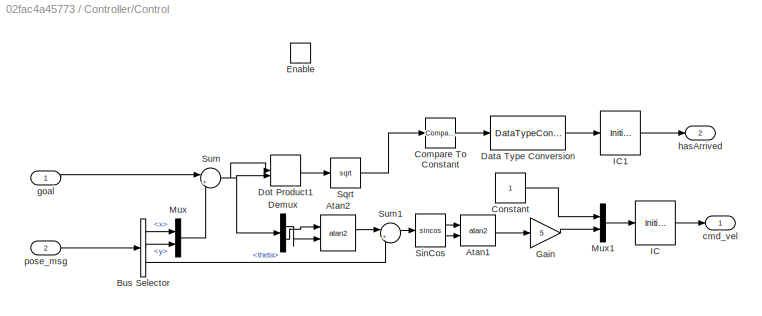
BLOCK [SubSystem] Controller/Control
  Ports = [2, 2, 1]
  RequestExecContextInheritance = off
BLOCK [Trigonometry] Controller/Control/Atan1
  Operator = atan2
  Ports = [2, 1]
BLOCK [Trigonometry] Controller/Control/Atan2
  Operator = atan2
  Ports = [2, 1]
BLOCK [BusSelector] Controller/Control/Bus Selector
  OutputSignals = x,y,theta
  Ports = [1, 3]
BLOCK [Reference] Controller/Control/Compare To Constant  REF=simulink/Logic and Bit
Operations/Compare
To Constant
  Ports = [1, 1]
  SourceBlock = simulink/Logic and Bit\nOperations/Compare\nTo Constant
  SourceProductBaseCode = SL
  SourceType = Compare To Constant
BLOCK [Constant] Controller/Control/Constant
BLOCK [DataTypeConversion] Controller/Control/Data Type Conversion
  RndMeth = Floor
  SaturateOnIntegerOverflow = off
BLOCK [Demux] Controller/Control/Demux
  Outputs = 2
  Ports = [1, 2]
BLOCK [DotProduct] Controller/Control/Dot Product1
  OutDataTypeStr = Inherit: Inherit via internal rule
BLOCK [EnablePort] Controller/Control/Enable
  Ports = []
BLOCK [Gain] Controller/Control/Gain
  Gain = 5
BLOCK [InitialCondition] Controller/Control/IC
  Value = [0;0]
BLOCK [InitialCondition] Controller/Control/IC1
BLOCK [Mux] Controller/Control/Mux
  DisplayOption = bar
  Inputs = 2
  Ports = [2, 1]
BLOCK [Mux] Controller/Control/Mux1
  DisplayOption = bar
  Inputs = 2
  Ports = [2, 1]
BLOCK [Trigonometry] Controller/Control/SinCos
  Operator = sincos
  Ports = [1, 2]
BLOCK [Sqrt] Controller/Control/Sqrt
BLOCK [Sum] Controller/Control/Sum
  Inputs = |+-
  Ports = [2, 1]
BLOCK [Sum] Controller/Control/Sum1
  Inputs = |+-
  Ports = [2, 1]
BLOCK [Outport] Controller/Control/cmd_vel
  SampleTime = 0.01
BLOCK [Inport] Controller/Control/goal
BLOCK [Outport] Controller/Control/hasArrived
  Port = 2
BLOCK [Inport] Controller/Control/pose_msg
  Port = 2
BLOCK [Demux] Controller/Demux1
  Outputs = 2
  Ports = [1, 2]
BLOCK [Merge] Controller/Merge
  InitialOutput = [0;0]
  Ports = [2, 1]
BLOCK [SubSystem] Controller/Stop Robot
  Ports = [0, 1, 0, 1]
  RequestExecContextInheritance = off
BLOCK [Constant] Controller/Stop Robot/Constant1
  Value = [0;0]
BLOCK [TriggerPort] Controller/Stop Robot/Trigger
  PortDimensions = 1
  Ports = []
  StatesWhenEnabling = held
  TriggerType = falling
  VariantControl = (inherit)
BLOCK [Outport] Controller/Stop Robot/cmd_vel
BLOCK [Outport] Controller/cmd_vel_msg
BLOCK [Inport] Controller/goal
BLOCK [Outport] Controller/hasArrived
  Port = 2
BLOCK [Inport] Controller/mode
  Port = 2
BLOCK [Inport] Controller/pose_msg
  Port = 3
BLOCK [DisplayBlock] Feedback
  LabelPosition = Hide
  Transparency = 1
BLOCK [SubSystem] From ROS2 Network
  PortSchema = {"entries":[{"content":{"sides":[{"content":{"connectorIds":["In1","Out1"]},"type":"ConnectorPlacement.EquallySpacedRectSide","uuid":"f269cb0f-6751-420c-b024-d2e3796ade5b"},{"content":{"connectorIds":[],"side":"RIGHT"},"type":"ConnectorPlacement.EquallySpacedRectSide","uuid":"2b43efcf-3102-43c3-9588-0e0fabe7b77d"},{"content":{"connectorIds":[],"side":"TOP"},"type":"ConnectorPlacement.EquallySpaced...<+241ch>
  Ports = [1, 1]
  RequestExecContextInheritance = off
BLOCK [Reference] From ROS2 Network/Publish  REF=ros2lib/Publish  (lib defined in slx_3c1549211f48)
  Ports = [1]
  SourceBlock = ros2lib/Publish
  SourceProductBaseCode = RR
  SourceType = ROS2 Publish
BLOCK [Scope] From ROS2 Network/Scope
  Floating = off
  NumInputPorts = 1
  Ports = [1]
  ScopeSpecificationString = Simulink.scopes.TimeScopeBlockCfg('CurrentConfiguration', extmgr.ConfigurationSet(extmgr.Configuration('Core','General UI',true),extmgr.Configuration('Core','Source UI',true),extmgr.Configuration('Sources','WiredSimulink',true,'DataLoggingVariableName','ScopeData2'),extmgr.Configuration('Visuals','Time Domain',true,'SerializedDisplays',{struct('MinYLimReal','-0.125','MaxYLimReal','1.125','YLabelRe...<+1387ch>
BLOCK [Reference] From ROS2 Network/Subscribe  REF=ros2lib/Subscribe  (lib defined in slx_3c1549211f48)
  Ports = [0, 2]
  SourceBlock = ros2lib/Subscribe
  SourceProductBaseCode = RR
  SourceType = ROS2 Subscribe
BLOCK [SubSystem] From ROS2 Network/Subsystem
  Ports = [1, 1, 0, 1]
  RequestExecContextInheritance = off
BLOCK [Inport] From ROS2 Network/Subsystem/In1
BLOCK [Outport] From ROS2 Network/Subsystem/Out1
BLOCK [TriggerPort] From ROS2 Network/Subsystem/Trigger
  PortDimensions = 1
  Ports = []
  StatesWhenEnabling = held
  VariantControl = (inherit)
BLOCK [Inport] From ROS2 Network/cmd_vel_msg
  SampleTime = 0.01
BLOCK [Outport] From ROS2 Network/pose_msg
  NameLocation = top
  SampleTime = 0.01
BLOCK [SubSystem] Input Interface
  Ports = [0, 1]
  RequestExecContextInheritance = off
BLOCK [BusCreator] Input Interface/Bus Creator
  DisplayOption = bar
  InheritFromInputs = on
  Inputs = 2
  Ports = [2, 1]
BLOCK [Constant] Input Interface/Constant
  Value = 2
BLOCK [Constant] Input Interface/Constant1
  Value = 3
BLOCK [Constant] Input Interface/Constant2
  Value = 0
BLOCK [Mux] Input Interface/Mux
  DisplayOption = bar
  Inputs = 2
  Ports = [2, 1]
BLOCK [Outport] Input Interface/request
BLOCK [LampBlock] Lamp
  LabelPosition = Hide
BLOCK [Memory] Memory
  InitialCondition = 1
  NameLocation = top
BLOCK [SubSystem] Output Interface
  Ports = [2]
  RequestExecContextInheritance = off
BLOCK [Display] Output Interface/Feedback
  Decimation = 1
  Ports = [1]
BLOCK [Display] Output Interface/Result
  Decimation = 1
  Ports = [1]
BLOCK [Inport] Output Interface/feedback
  Port = 2
BLOCK [Inport] Output Interface/result
BLOCK [PushButtonBlock] Push Button
  IconAlignment = Center
  IconColor = On
  OffValue = 0.000000
  Opacity = 0
BLOCK [EditField] Request : x
  Alignment = Center
  LabelPosition = Hide
  ShowInitialText = on
BLOCK [EditField] Request : y
  Alignment = Center
  LabelPosition = Hide
  ShowInitialText = on
BLOCK [DisplayBlock] Result
  LabelPosition = Hide
  Transparency = 1
BLOCK [SubSystem] Scheduler
  PortSchema = {"entries":[{"content":{"sides":[{"content":{"connectorIds":["In1","Out3"]},"type":"ConnectorPlacement.EquallySpacedRectSide","uuid":"1630b4b1-4c51-4b39-8ddc-aa89298d57f7"},{"content":{"connectorIds":["In2","Out1","Out2"],"side":"RIGHT"},"type":"ConnectorPlacement.EquallySpacedRectSide","uuid":"26eab6e1-3412-432a-b46d-5233f76b34aa"},{"content":{"connectorIds":[],"side":"TOP"},"type":"ConnectorPlac...<+260ch>
  Ports = [2, 3]
  RequestExecContextInheritance = off
BLOCK [BusSelector] Scheduler/Bus Selector
  OutputSignals = trigger,goal
  Ports = [1, 2]
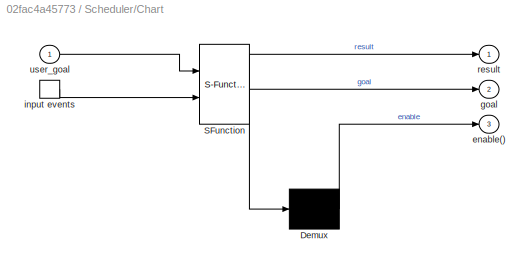
BLOCK [SubSystem] Scheduler/Chart
  ErrorFcn = Stateflow.Translate.translate
  PermitHierarchicalResolution = ExplicitOnly
  Ports = [1, 3, 0, 1]
  RequestExecContextInheritance = off
  SFBlockType = Chart
  TreatAsAtomicUnit = on
BLOCK [Demux] Scheduler/Chart/ Demux 
  Outputs = 1
  Ports = [1, 1]
BLOCK [S-Function] Scheduler/Chart/ SFunction 
  EnableBusSupport = on
  FunctionName = sf_sfun
  PortCounts = [2 3]
  Ports = [2, 3]
  SFcnIsStateOwnerBlock = off
  SFunctionDeploymentMode = off
  Tag = Stateflow S-Function 3
BLOCK [Outport] Scheduler/Chart/enable()
  Port = 3
BLOCK [Outport] Scheduler/Chart/goal
  Port = 2
BLOCK [TriggerPort] Scheduler/Chart/input events
  Ports = [0, 1]
  ShowOutputPort = on
  StatesWhenEnabling = held
  TriggerType = function-call
  VariantControl = (inherit)
BLOCK [Outport] Scheduler/Chart/result
BLOCK [Inport] Scheduler/Chart/user_goal
BLOCK [SubSystem] Scheduler/Chart1
  ErrorFcn = Stateflow.Translate.translate
  PermitHierarchicalResolution = ExplicitOnly
  Ports = [0, 1, 0, 1]
  RequestExecContextInheritance = off
  SFBlockType = Chart
  TreatAsAtomicUnit = on
BLOCK [Demux] Scheduler/Chart1/ Demux 
  Outputs = 1
  Ports = [1, 1]
BLOCK [S-Function] Scheduler/Chart1/ SFunction 
  EnableBusSupport = on
  FunctionName = sf_sfun
  PortCounts = [1 2]
  Ports = [1, 2]
  SFcnIsStateOwnerBlock = off
  SFunctionDeploymentMode = off
  Tag = Stateflow S-Function 2
BLOCK [Terminator] Scheduler/Chart1/ Terminator 
BLOCK [TriggerPort] Scheduler/Chart1/input events
  Ports = [0, 1]
  ShowOutputPort = on
  StatesWhenEnabling = held
  TriggerType = function-call
  VariantControl = (inherit)
BLOCK [Outport] Scheduler/Chart1/mode
BLOCK [HitCross] Scheduler/Hit Crossing
  HitCrossingDirection = rising
  HitCrossingOutputType = Function-Call
  Ports = [1, 1]
BLOCK [HitCross] Scheduler/Hit Crossing1
  HitCrossingDirection = rising
  HitCrossingOutputType = Function-Call
  Ports = [1, 1]
BLOCK [HitCross] Scheduler/Hit Crossing2
  HitCrossingDirection = rising
  HitCrossingOutputType = Function-Call
  Ports = [1, 1]
BLOCK [Mux] Scheduler/Mux1
  DisplayOption = bar
  Inputs = 2
  Ports = [2, 1]
BLOCK [Mux] Scheduler/Mux2
  DisplayOption = bar
  Inputs = 2
  Ports = [2, 1]
BLOCK [Outport] Scheduler/goal
BLOCK [Inport] Scheduler/hasArrived
  NameLocation = top
  Port = 2
BLOCK [Outport] Scheduler/mode
  Port = 2
BLOCK [Inport] Scheduler/request
BLOCK [Outport] Scheduler/result
  Port = 3
ANNOTATION (root): SEND ACTION REQUEST
ANNOTATION (root): Version : 0.0.1 Description: This model allows the Turtlesim to move to desired goal autnomously. Maintainer: Pi Thanacha Choopojcharoen Email Address: <email> License : GPLv2
LINE Action Feedback/distance calculator/Bus Selector1:1 -> Action Feedback/distance calculator/Mux2:1
LINE Action Feedback/distance calculator/Bus Selector1:2 -> Action Feedback/distance calculator/Mux2:2
LINE Action Feedback/distance calculator/Bus Selector1:3 -> Action Feedback/distance calculator/Terminator:1
LINE Action Feedback/distance calculator/Dot Product1:1 -> Action Feedback/distance calculator/Sqrt:1
LINE Action Feedback/distance calculator/Mux2:1 -> Action Feedback/distance calculator/Sum:2
LINE Action Feedback/distance calculator/Rate Transition:1 -> Action Feedback/distance calculator/dist:1
LINE Action Feedback/distance calculator/Sqrt:1 -> Action Feedback/distance calculator/Rate Transition:1
NET Action Feedback/distance calculator/Sum:1 -> Action Feedback/distance calculator/Dot Product1:1, Action Feedback/distance calculator/Dot Product1:2
LINE Action Feedback/distance calculator/goal:1 -> Action Feedback/distance calculator/Sum:1
LINE Action Feedback/distance calculator/pose_msg:1 -> Action Feedback/distance calculator/Bus Selector1:1
LINE Action Feedback/distance calculator:1 -> Action Feedback/dist:1
LINE Action Feedback/goal:1 -> Action Feedback/distance calculator:1
LINE Action Feedback/mode:1 -> Action Feedback/distance calculator:enable
LINE Action Feedback/pose_msg:1 -> Action Feedback/distance calculator:2
LINE Action Feedback:1 -> Output Interface:2
LINE Controller/Blank Message:1 -> Controller/Bus Assignment:1
LINE Controller/Bus Assignment:1 -> Controller/cmd_vel_msg:1
LINE Controller/Control/Atan1:1 -> Controller/Control/Gain:1
LINE Controller/Control/Atan2:1 -> Controller/Control/Sum1:1
LINE Controller/Control/Bus Selector:1 -> Controller/Control/Mux:1
LINE Controller/Control/Bus Selector:2 -> Controller/Control/Mux:2
LINE Controller/Control/Bus Selector:3 -> Controller/Control/Sum1:2
LINE Controller/Control/Compare To Constant:1 -> Controller/Control/Data Type Conversion:1
LINE Controller/Control/Constant:1 -> Controller/Control/Mux1:1
LINE Controller/Control/Data Type Conversion:1 -> Controller/Control/IC1:1
LINE Controller/Control/Demux:1 -> Controller/Control/Atan2:2
LINE Controller/Control/Demux:2 -> Controller/Control/Atan2:1
LINE Controller/Control/Dot Product1:1 -> Controller/Control/Sqrt:1
LINE Controller/Control/Gain:1 -> Controller/Control/Mux1:2
LINE Controller/Control/IC1:1 -> Controller/Control/hasArrived:1
LINE Controller/Control/IC:1 -> Controller/Control/cmd_vel:1
LINE Controller/Control/Mux1:1 -> Controller/Control/IC:1
LINE Controller/Control/Mux:1 -> Controller/Control/Sum:2
LINE Controller/Control/SinCos:1 -> Controller/Control/Atan1:1
LINE Controller/Control/SinCos:2 -> Controller/Control/Atan1:2
LINE Controller/Control/Sqrt:1 -> Controller/Control/Compare To Constant:1
LINE Controller/Control/Sum1:1 -> Controller/Control/SinCos:1
NET Controller/Control/Sum:1 -> Controller/Control/Demux:1, Controller/Control/Dot Product1:1, Controller/Control/Dot Product1:2
LINE Controller/Control/goal:1 -> Controller/Control/Sum:1
LINE Controller/Control/pose_msg:1 -> Controller/Control/Bus Selector:1
LINE Controller/Control:1 -> Controller/Merge:2
LINE Controller/Control:2 -> Controller/hasArrived:1
LINE Controller/Demux1:1 -> Controller/Bus Assignment:2
LINE Controller/Demux1:2 -> Controller/Bus Assignment:3
LINE Controller/Merge:1 -> Controller/Demux1:1
LINE Controller/Stop Robot/Constant1:1 -> Controller/Stop Robot/cmd_vel:1
LINE Controller/Stop Robot:1 -> Controller/Merge:1
LINE Controller/goal:1 -> Controller/Control:1
NET Controller/mode:1 -> Controller/Control:enable, Controller/Stop Robot:trigger
LINE Controller/pose_msg:1 -> Controller/Control:2
LINE Controller:1 -> From ROS2 Network:1
LINE Controller:2 -> Memory:1
NET From ROS2 Network/Subscribe:1 -> From ROS2 Network/Scope:1, From ROS2 Network/Subsystem:trigger
LINE From ROS2 Network/Subscribe:2 -> From ROS2 Network/Subsystem:1
LINE From ROS2 Network/Subsystem/In1:1 -> From ROS2 Network/Subsystem/Out1:1
LINE From ROS2 Network/Subsystem:1 -> From ROS2 Network/pose_msg:1
LINE From ROS2 Network/cmd_vel_msg:1 -> From ROS2 Network/Publish:1
NET From ROS2 Network:1 -> Action Feedback:3, Controller:3
LINE Input Interface/Bus Creator:1 -> Input Interface/request:1
LINE Input Interface/Constant1:1 -> Input Interface/Mux:2
LINE Input Interface/Constant2:1 -> Input Interface/Bus Creator:2
LINE Input Interface/Constant:1 -> Input Interface/Mux:1
LINE Input Interface/Mux:1 -> Input Interface/Bus Creator:1
LINE Input Interface:1 -> Scheduler:1
LINE Memory:1 -> Scheduler:2
LINE Output Interface/feedback:1 -> Output Interface/Feedback:1
LINE Output Interface/result:1 -> Output Interface/Result:1
LINE Scheduler/Bus Selector:1 -> Scheduler/Hit Crossing:1
LINE Scheduler/Bus Selector:2 -> Scheduler/Chart:1
LINE Scheduler/Chart1:1 -> Scheduler/mode:1
LINE Scheduler/Chart:1 -> Scheduler/result:1
LINE Scheduler/Chart:2 -> Scheduler/goal:1
LINE Scheduler/Chart:3 -> Scheduler/Mux2:2
LINE Scheduler/Hit Crossing1:1 -> Scheduler/Mux2:1
LINE Scheduler/Hit Crossing2:1 -> Scheduler/Mux1:1
LINE Scheduler/Hit Crossing:1 -> Scheduler/Mux1:2
LINE Scheduler/Mux1:1 -> Scheduler/Chart:trigger
LINE Scheduler/Mux2:1 -> Scheduler/Chart1:trigger
NET Scheduler/hasArrived:1 -> Scheduler/Hit Crossing1:1, Scheduler/Hit Crossing2:1
LINE Scheduler/request:1 -> Scheduler/Bus Selector:1
NET Scheduler:1 -> Action Feedback:1, Controller:1
NET Scheduler:2 -> Action Feedback:2, Controller:2
LINE Scheduler:3 -> Output Interface:1
note: NET lines group one-source signal fan-out (src -> all destinations, sorted); 1:1 wires keep LINE
CHART Scheduler/Chart1 states=2 transitions=3
  STATE_LABEL 'IDLE'
  STATE_LABEL 'RUN'
CHART Scheduler/Chart states=2 transitions=3
  STATE_LABEL 'IDLE'
  STATE_LABEL 'WAIT'
CHART  states=0 transitions=0
CHART  states=0 transitions=0
